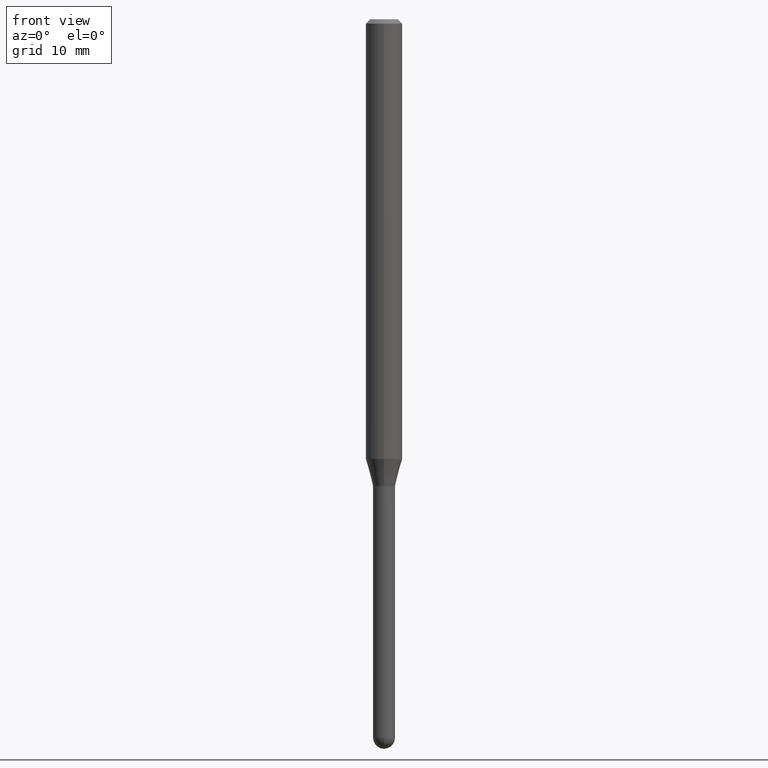
[diagram: clean part render]
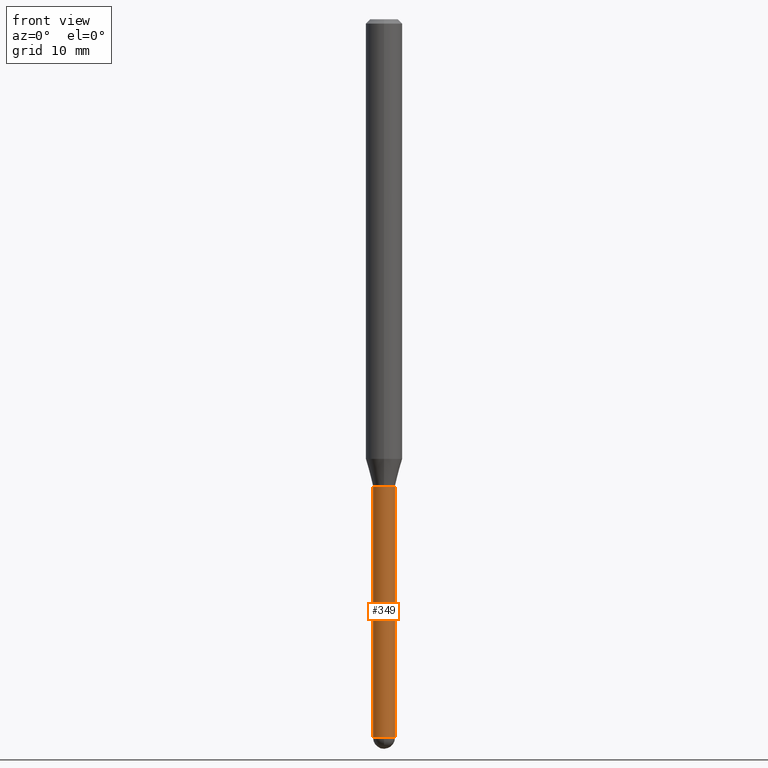
[diagram: same view with one face highlighted and labeled with its STEP entity id]
A machine part, front view. The second image highlights one B-rep face of the part: STEP entity #349.
In plain terms, the highlighted cylindrical surface (edge-blend (fillet) strip) has radius 0.9525 mm, axis along (-0, 0, 1).
Its self-contained STEP definition (entity closure, byte-faithful):
#11 = DIRECTION ( 'NONE',  ( -2.445468806185136877E-29, 3.491481338843145188E-15, 1.000000000000000000 ) ) ;
#38 = CARTESIAN_POINT ( 'NONE',  ( 0.03749999999999999861, -5.848231242562268092E-15, -1.600000000000000089 ) ) ;
#39 = FACE_OUTER_BOUND ( 'NONE', #431, .T. ) ;
#44 = VERTEX_POINT ( 'NONE', #38 ) ;
#56 = CARTESIAN_POINT ( 'NONE',  ( 0.03749999999999999861, -2.618611004132350016E-16, 1.828566290923475922E-30 ) ) ;
#57 = EDGE_CURVE ( 'NONE', #358, #477, #119, .T. ) ;
#75 = CARTESIAN_POINT ( 'NONE',  ( 6.021966935230899318E-29, -8.597772796901246653E-15, -2.462500000000000355 ) ) ;
#83 = DIRECTION ( 'NONE',  ( -2.445468806185136597E-29, 3.491481338843145583E-15, 1.000000000000000000 ) ) ;
#92 = CARTESIAN_POINT ( 'NONE',  ( -0.03749999999999999861, 2.664535259100375598E-16, -1.844600658845589808E-30 ) ) ;
#115 = EDGE_CURVE ( 'NONE', #477, #192, #181, .T. ) ;
#117 = AXIS2_PLACEMENT_3D ( 'NONE', #394, #83, #400 ) ;
#119 = CIRCLE ( 'NONE', #364, 0.03749999999999999861 ) ;
#122 = CARTESIAN_POINT ( 'NONE',  ( 6.021966935230899318E-29, -8.597772796901246653E-15, -2.462500000000000355 ) ) ;
#124 = DIRECTION ( 'NONE',  ( 1.000000000000000000, -6.982962677686268288E-15, 0.000000000000000000 ) ) ;
#126 = ORIENTED_EDGE ( 'NONE', *, *, #437, .F. ) ;
#147 = ORIENTED_EDGE ( 'NONE', *, *, #57, .T. ) ;
#161 = VECTOR ( 'NONE', #11, 39.37007874015748143 ) ;
#163 = DIRECTION ( 'NONE',  ( -2.445468806185136597E-29, 3.491481338843145583E-15, 1.000000000000000000 ) ) ;
#181 = CIRCLE ( 'NONE', #397, 0.03749999999999999861 ) ;
#192 = VERTEX_POINT ( 'NONE', #282 ) ;
#202 = DIRECTION ( 'NONE',  ( -2.445468806185136877E-29, 3.491481338843145188E-15, 1.000000000000000000 ) ) ;
#206 = CARTESIAN_POINT ( 'NONE',  ( -2.664535259099770148E-16, -0.03750000000000855427, -2.462500000000000355 ) ) ;
#267 = ORIENTED_EDGE ( 'NONE', *, *, #386, .F. ) ;
#273 = CYLINDRICAL_SURFACE ( 'NONE', #117, 0.03749999999999999861 ) ;
#281 = DIRECTION ( 'NONE',  ( -2.445468806185136597E-29, 3.491481338843145583E-15, 1.000000000000000000 ) ) ;
#282 = CARTESIAN_POINT ( 'NONE',  ( 0.03749999999999999861, -7.353932569938374479E-15, -2.462500000000000355 ) ) ;
#295 = DIRECTION ( 'NONE',  ( 1.000000000000000000, -6.982962677686242256E-15, 0.000000000000000000 ) ) ;
#309 = VECTOR ( 'NONE', #202, 39.37007874015748143 ) ;
#321 = EDGE_CURVE ( 'NONE', #192, #44, #410, .T. ) ;
#322 = AXIS2_PLACEMENT_3D ( 'NONE', #346, #163, #124 ) ;
#346 = CARTESIAN_POINT ( 'NONE',  ( 3.912750089896218667E-29, -5.586370142149033090E-15, -1.600000000000000089 ) ) ;
#349 = ADVANCED_FACE ( 'NONE', ( #39 ), #273, .T. ) ;
#357 = CARTESIAN_POINT ( 'NONE',  ( -0.03749999999999999861, -6.825617943615102854E-15, -1.600000000000000089 ) ) ;
#358 = VERTEX_POINT ( 'NONE', #509 ) ;
#364 = AXIS2_PLACEMENT_3D ( 'NONE', #122, #281, #508 ) ;
#386 = EDGE_CURVE ( 'NONE', #404, #44, #392, .T. ) ;
#392 = CIRCLE ( 'NONE', #322, 0.03749999999999999861 ) ;
#394 = CARTESIAN_POINT ( 'NONE',  ( 0.000000000000000000, 0.000000000000000000, 0.000000000000000000 ) ) ;
#397 = AXIS2_PLACEMENT_3D ( 'NONE', #75, #491, #295 ) ;
#400 = DIRECTION ( 'NONE',  ( 1.000000000000000000, -6.982962677686266711E-15, 4.876176775795935793E-29 ) ) ;
#404 = VERTEX_POINT ( 'NONE', #357 ) ;
#410 = LINE ( 'NONE', #56, #161 ) ;
#431 = EDGE_LOOP ( 'NONE', ( #126, #147, #510, #463, #267 ) ) ;
#437 = EDGE_CURVE ( 'NONE', #358, #404, #446, .T. ) ;
#446 = LINE ( 'NONE', #92, #309 ) ;
#463 = ORIENTED_EDGE ( 'NONE', *, *, #321, .T. ) ;
#477 = VERTEX_POINT ( 'NONE', #206 ) ;
#491 = DIRECTION ( 'NONE',  ( -2.445468806185136597E-29, 3.491481338843145583E-15, 1.000000000000000000 ) ) ;
#508 = DIRECTION ( 'NONE',  ( 1.000000000000000000, -6.982962677686242256E-15, 0.000000000000000000 ) ) ;
#509 = CARTESIAN_POINT ( 'NONE',  ( -0.03749999999999999861, -6.825617943615102854E-15, -2.462500000000000355 ) ) ;
#510 = ORIENTED_EDGE ( 'NONE', *, *, #115, .T. ) ;